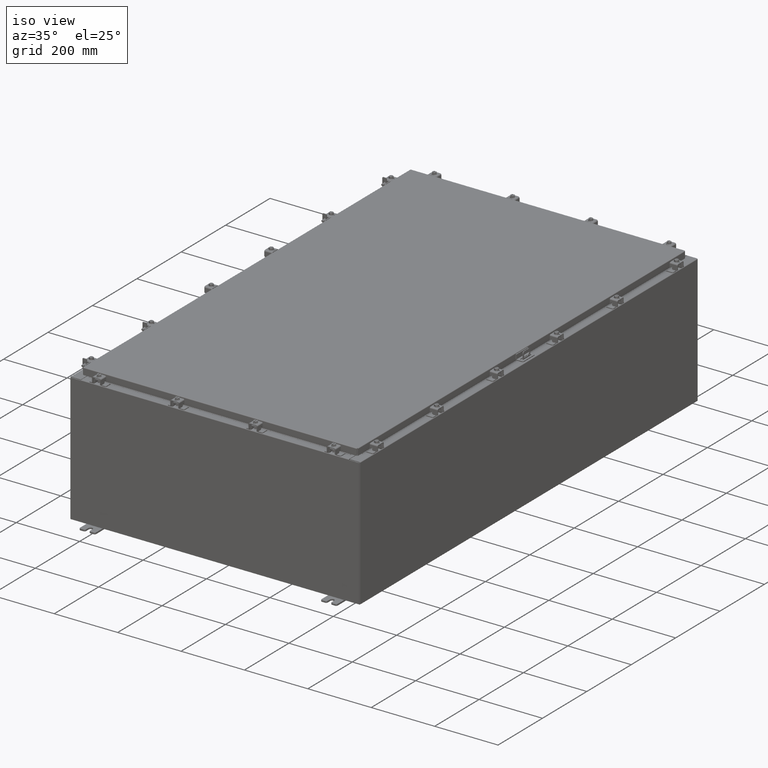
[diagram: clean part render]
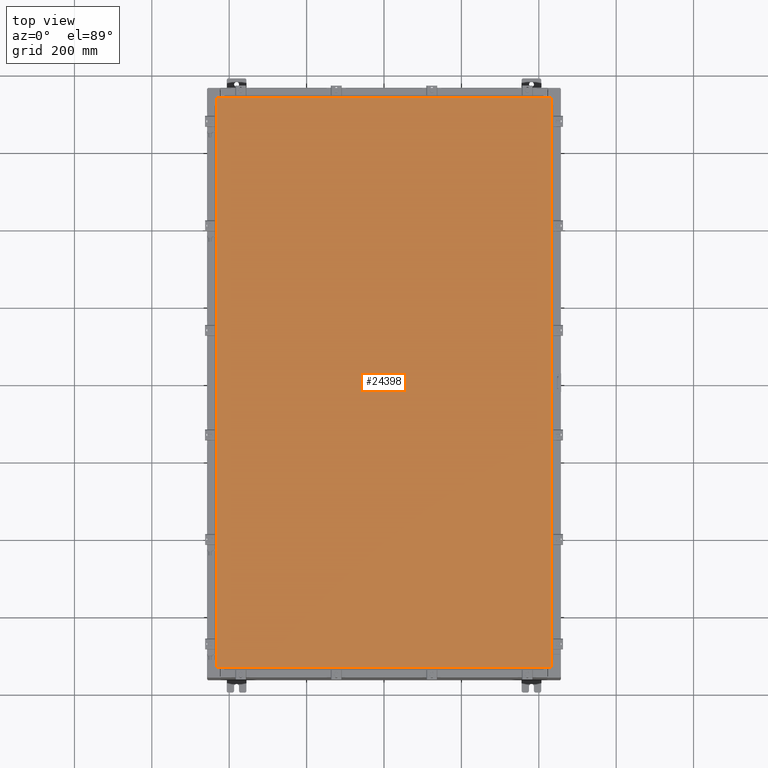
[diagram: tour spotlight — one face highlighted and labeled with its STEP entity id]
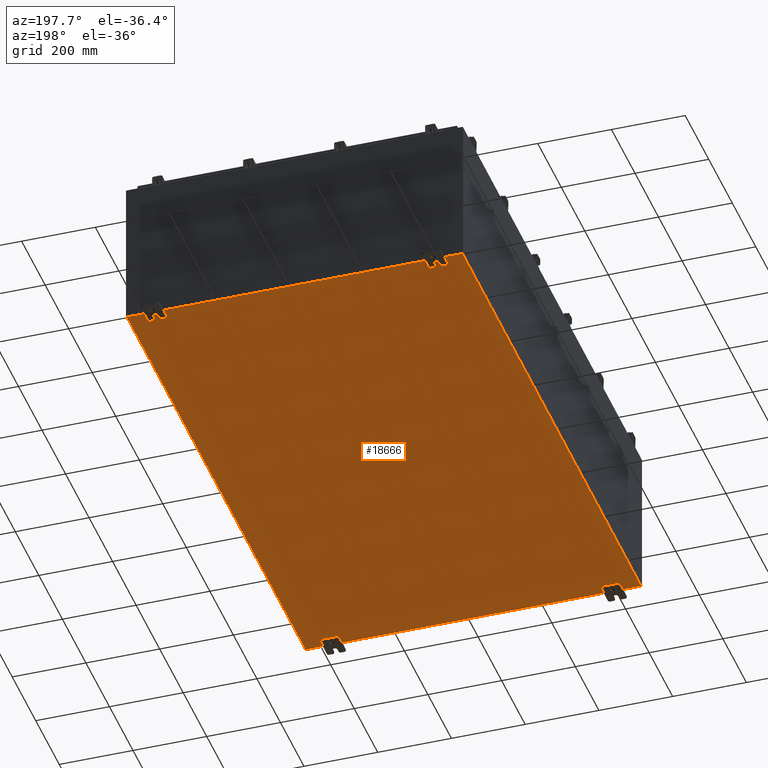
[diagram: tour spotlight — one face highlighted and labeled with its STEP entity id]
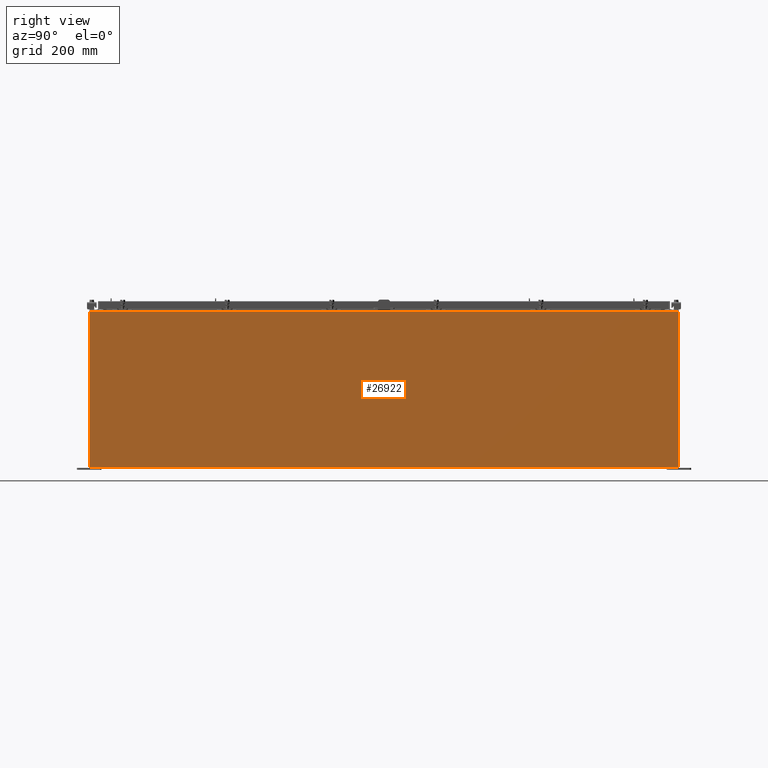
[diagram: tour spotlight — one face highlighted and labeled with its STEP entity id]
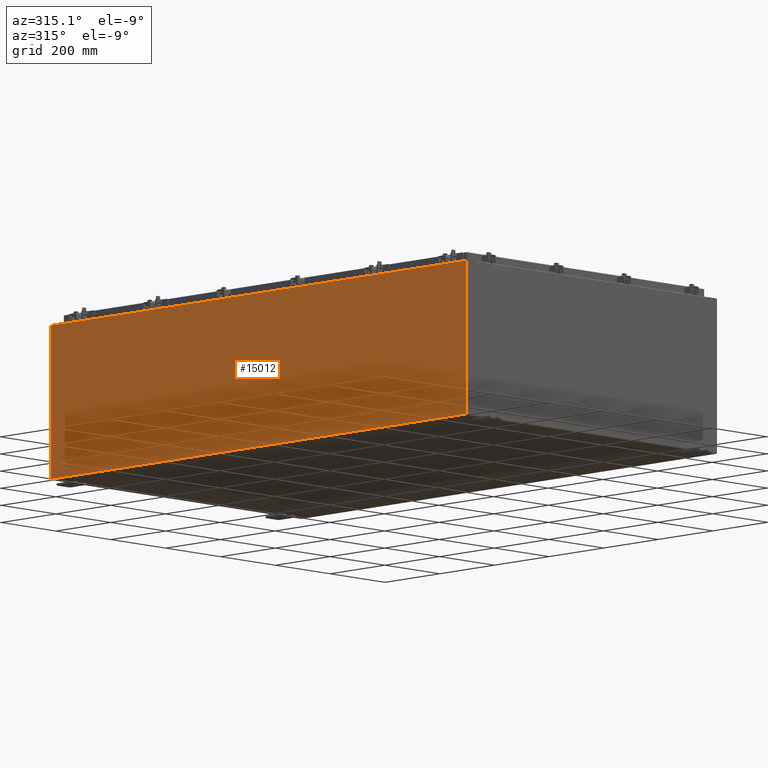
[diagram: tour spotlight — one face highlighted and labeled with its STEP entity id]
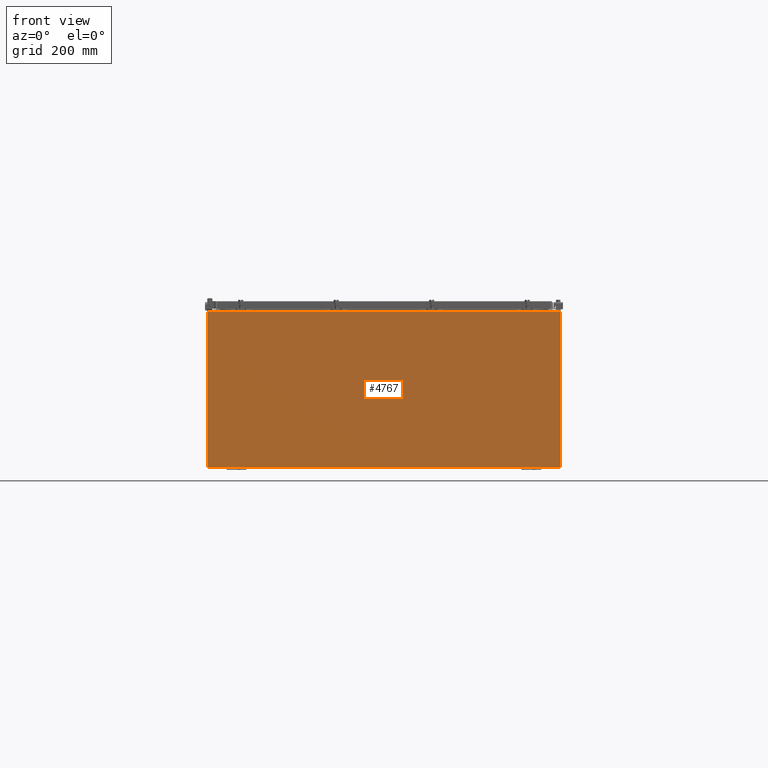
[diagram: tour spotlight — one face highlighted and labeled with its STEP entity id]
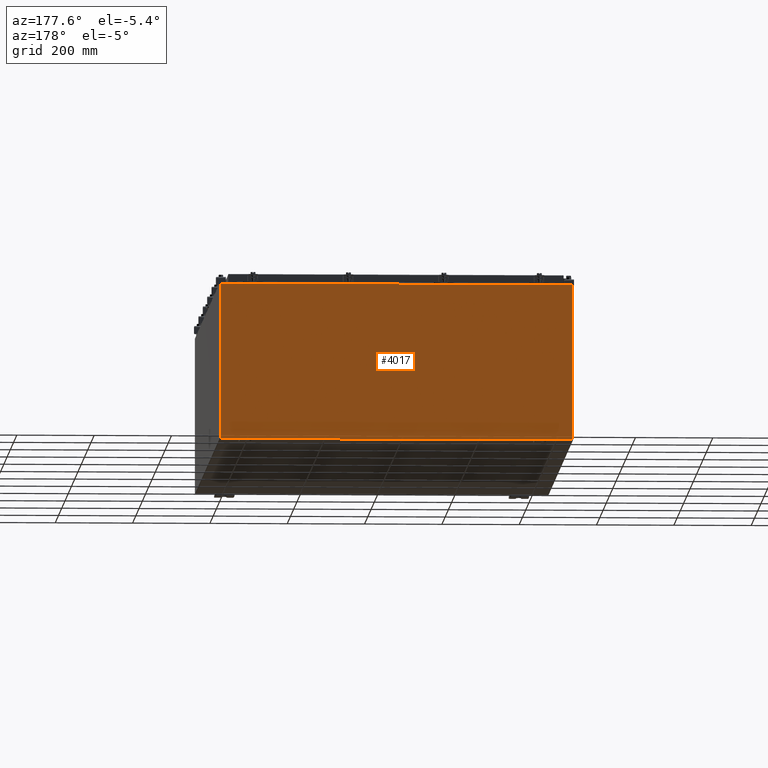
[diagram: tour spotlight — one face highlighted and labeled with its STEP entity id]
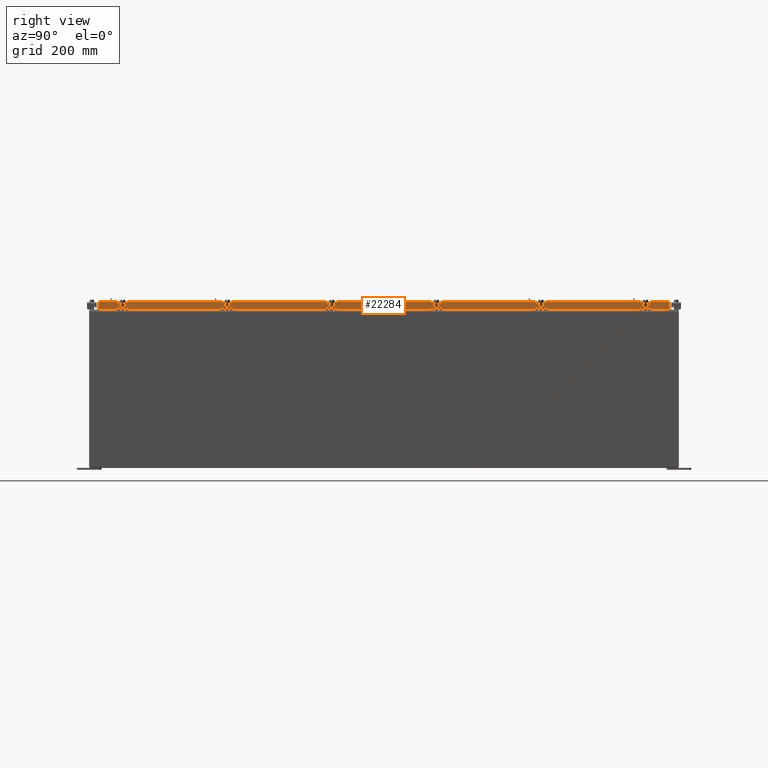
[diagram: tour spotlight — one face highlighted and labeled with its STEP entity id]
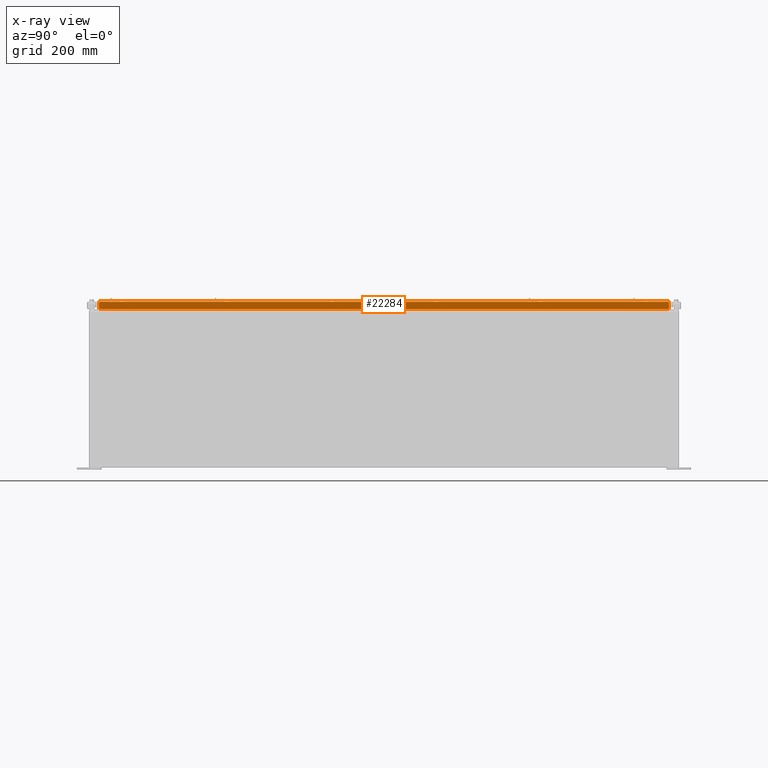
[diagram: x-ray of the same camera — body ghosted, this tour face saturated]
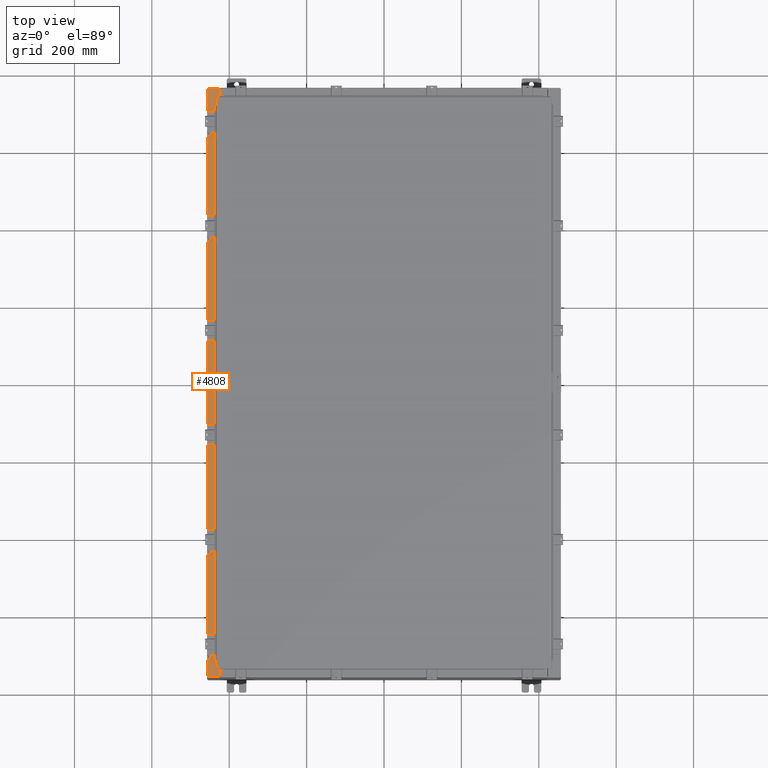
[diagram: tour spotlight — one face highlighted and labeled with its STEP entity id]
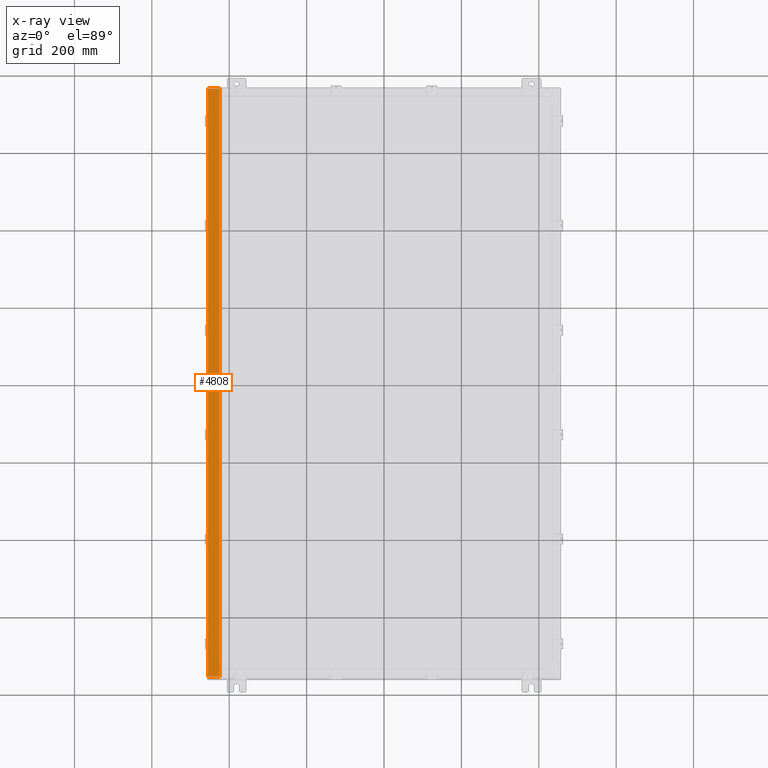
[diagram: x-ray of the same camera — body ghosted, this tour face saturated]
A machine part: a face-by-face anatomy tour. The part has 3424 B-rep faces; the first image is the clean iso view, then the 8 largest visible faces are spotlighted one at a time (largest first), each with its STEP entity span.

Face 1 — top view, entity #24398. In plain terms, the highlighted planar face has unit normal (0, 0, -1).
Definition (entity closure, byte-faithful):
#285 = DIRECTION ( 'NONE',  ( 0.0000000000000000000, -1.000000000000000000, 0.0000000000000000000 ) ) ;
#476 = ORIENTED_EDGE ( 'NONE', *, *, #16790, .T. ) ;
#2296 = CARTESIAN_POINT ( 'NONE',  ( 16.99030000000000100, 29.00630000000000300, 1.946441695485787500E-015 ) ) ;
#2673 = EDGE_CURVE ( 'NONE', #3582, #8824, #25720, .T. ) ;
#3081 = VERTEX_POINT ( 'NONE', #13873 ) ;
#3582 = VERTEX_POINT ( 'NONE', #10084 ) ;
#4057 = AXIS2_PLACEMENT_3D ( 'NONE', #19864, #24164, #11387 ) ;
#4143 = VERTEX_POINT ( 'NONE', #4274 ) ;
#4274 = CARTESIAN_POINT ( 'NONE',  ( -16.99029999999999800, 29.00629999999999600, -2.048885995248197400E-016 ) ) ;
#4949 = PLANE ( 'NONE',  #4057 ) ;
#5004 = VECTOR ( 'NONE', #15043, 39.37007874015748100 ) ;
#6049 = ORIENTED_EDGE ( 'NONE', *, *, #23195, .T. ) ;
#6284 = DIRECTION ( 'NONE',  ( 1.000000000000000000, -0.0000000000000000000, -0.0000000000000000000 ) ) ;
#6355 = DIRECTION ( 'NONE',  ( 0.0000000000000000000, 1.000000000000000000, 0.0000000000000000000 ) ) ;
#7999 = VECTOR ( 'NONE', #285, 39.37007874015748100 ) ;
#8824 = VERTEX_POINT ( 'NONE', #16260 ) ;
#10084 = CARTESIAN_POINT ( 'NONE',  ( 16.99030000000000500, -29.00630000000000000, -2.048885995248197400E-016 ) ) ;
#11387 = DIRECTION ( 'NONE',  ( -1.000000000000000000, 0.0000000000000000000, -0.0000000000000000000 ) ) ;
#13873 = CARTESIAN_POINT ( 'NONE',  ( -16.99029999999999400, -29.00630000000000700, 1.946441695485787500E-015 ) ) ;
#14957 = FACE_OUTER_BOUND ( 'NONE', #20002, .T. ) ;
#15043 = DIRECTION ( 'NONE',  ( -1.000000000000000000, -0.0000000000000000000, -0.0000000000000000000 ) ) ;
#15853 = EDGE_CURVE ( 'NONE', #3081, #3582, #20408, .T. ) ;
#16260 = CARTESIAN_POINT ( 'NONE',  ( 16.99030000000000100, 29.00630000000000300, 1.946441695485787500E-015 ) ) ;
#16790 = EDGE_CURVE ( 'NONE', #4143, #3081, #25030, .T. ) ;
#19864 = CARTESIAN_POINT ( 'NONE',  ( 0.0000000000000000000, 0.0000000000000000000, 0.0000000000000000000 ) ) ;
#20002 = EDGE_LOOP ( 'NONE', ( #23598, #24857, #6049, #476 ) ) ;
#20034 = VECTOR ( 'NONE', #6355, 39.37007874015748100 ) ;
#20408 = LINE ( 'NONE', #21228, #25414 ) ;
#21228 = CARTESIAN_POINT ( 'NONE',  ( -16.99029999999999400, -29.00630000000000700, 1.946441695485787500E-015 ) ) ;
#21374 = LINE ( 'NONE', #2296, #5004 ) ;
#23195 = EDGE_CURVE ( 'NONE', #8824, #4143, #21374, .T. ) ;
#23598 = ORIENTED_EDGE ( 'NONE', *, *, #15853, .T. ) ;
#24164 = DIRECTION ( 'NONE',  ( 0.0000000000000000000, 0.0000000000000000000, -1.000000000000000000 ) ) ;
#24398 = ADVANCED_FACE ( 'NONE', ( #14957 ), #4949, .F. ) ;
#24857 = ORIENTED_EDGE ( 'NONE', *, *, #2673, .T. ) ;
#25030 = LINE ( 'NONE', #25814, #7999 ) ;
#25414 = VECTOR ( 'NONE', #6284, 39.37007874015748100 ) ;
#25585 = CARTESIAN_POINT ( 'NONE',  ( 16.99030000000000500, -29.00630000000000000, -2.048885995248197400E-016 ) ) ;
#25720 = LINE ( 'NONE', #25585, #20034 ) ;
#25814 = CARTESIAN_POINT ( 'NONE',  ( -16.99029999999999800, 29.00629999999998900, -2.048885995248197400E-016 ) ) ;

Face 2 — auxiliary view, entity #18666. In plain terms, the highlighted planar face has unit normal (0, 0, -1).
Definition (entity closure, byte-faithful):
#71 = PLANE ( 'NONE',  #1835 ) ;
#624 = VERTEX_POINT ( 'NONE', #17919 ) ;
#1250 = DIRECTION ( 'NONE',  ( -0.0000000000000000000, 1.000000000000000000, -0.0000000000000000000 ) ) ;
#1383 = CARTESIAN_POINT ( 'NONE',  ( -17.91230000000000200, 29.92529999999998600, -0.07470000000000000300 ) ) ;
#1835 = AXIS2_PLACEMENT_3D ( 'NONE', #25599, #19161, #2201 ) ;
#2201 = DIRECTION ( 'NONE',  ( -1.000000000000000000, 0.0000000000000000000, -0.0000000000000000000 ) ) ;
#5049 = LINE ( 'NONE', #24627, #9377 ) ;
#5662 = ORIENTED_EDGE ( 'NONE', *, *, #6009, .F. ) ;
#5933 = EDGE_LOOP ( 'NONE', ( #23881, #12210, #5662, #18965 ) ) ;
#6009 = EDGE_CURVE ( 'NONE', #16447, #14660, #11125, .T. ) ;
#6647 = LINE ( 'NONE', #21953, #17358 ) ;
#6887 = EDGE_CURVE ( 'NONE', #624, #14660, #5049, .T. ) ;
#8800 = DIRECTION ( 'NONE',  ( -1.000000000000000000, -0.0000000000000000000, -0.0000000000000000000 ) ) ;
#9172 = DIRECTION ( 'NONE',  ( -0.0000000000000000000, -1.000000000000000000, -0.0000000000000000000 ) ) ;
#9377 = VECTOR ( 'NONE', #1250, 39.37007874015748100 ) ;
#9401 = CARTESIAN_POINT ( 'NONE',  ( 17.91229999999999800, -29.92530000000001100, -0.07470000000000000300 ) ) ;
#9698 = CARTESIAN_POINT ( 'NONE',  ( -18.00000000000000400, -29.92530000000001100, -0.07470000000000000300 ) ) ;
#10316 = VECTOR ( 'NONE', #24631, 39.37007874015748100 ) ;
#11125 = LINE ( 'NONE', #21585, #27462 ) ;
#12002 = VERTEX_POINT ( 'NONE', #9401 ) ;
#12210 = ORIENTED_EDGE ( 'NONE', *, *, #6887, .T. ) ;
#14286 = FACE_OUTER_BOUND ( 'NONE', #5933, .T. ) ;
#14660 = VERTEX_POINT ( 'NONE', #1383 ) ;
#16137 = CARTESIAN_POINT ( 'NONE',  ( 17.91229999999999800, 29.92529999999999300, -0.07469999999999994700 ) ) ;
#16447 = VERTEX_POINT ( 'NONE', #16137 ) ;
#17358 = VECTOR ( 'NONE', #9172, 39.37007874015748100 ) ;
#17919 = CARTESIAN_POINT ( 'NONE',  ( -17.91230000000000200, -29.92530000000001100, -0.07469999999999994700 ) ) ;
#18666 = ADVANCED_FACE ( 'NONE', ( #14286 ), #71, .T. ) ;
#18965 = ORIENTED_EDGE ( 'NONE', *, *, #23369, .T. ) ;
#19161 = DIRECTION ( 'NONE',  ( 0.0000000000000000000, 0.0000000000000000000, -1.000000000000000000 ) ) ;
#21585 = CARTESIAN_POINT ( 'NONE',  ( -18.00000000000000400, 29.92529999999998900, -0.07470000000000000300 ) ) ;
#21640 = LINE ( 'NONE', #9698, #10316 ) ;
#21953 = CARTESIAN_POINT ( 'NONE',  ( 17.91229999999999800, 29.92529999999999300, -0.07469999999999994700 ) ) ;
#23369 = EDGE_CURVE ( 'NONE', #16447, #12002, #6647, .T. ) ;
#23881 = ORIENTED_EDGE ( 'NONE', *, *, #24598, .F. ) ;
#24598 = EDGE_CURVE ( 'NONE', #624, #12002, #21640, .T. ) ;
#24627 = CARTESIAN_POINT ( 'NONE',  ( -17.91230000000000200, -29.92530000000002100, -0.07469999999999994700 ) ) ;
#24631 = DIRECTION ( 'NONE',  ( 1.000000000000000000, 0.0000000000000000000, 0.0000000000000000000 ) ) ;
#25599 = CARTESIAN_POINT ( 'NONE',  ( 0.0000000000000000000, 0.0000000000000000000, -0.07470000000000000300 ) ) ;
#27462 = VECTOR ( 'NONE', #8800, 39.37007874015748100 ) ;

Face 3 — right view, entity #26922. In plain terms, the highlighted planar face has unit normal (-1, 0, 0).
Definition (entity closure, byte-faithful):
#340 = LINE ( 'NONE', #15529, #16701 ) ;
#2521 = PLANE ( 'NONE',  #24140 ) ;
#3540 = EDGE_CURVE ( 'NONE', #8741, #20076, #16877, .T. ) ;
#3715 = ORIENTED_EDGE ( 'NONE', *, *, #14588, .T. ) ;
#4912 = DIRECTION ( 'NONE',  ( -3.430827668758847500E-015, 0.0000000000000000000, -1.000000000000000000 ) ) ;
#6778 = DIRECTION ( 'NONE',  ( -1.000000000000000000, 0.0000000000000000000, 3.430827668758846700E-015 ) ) ;
#6800 = VERTEX_POINT ( 'NONE', #7332 ) ;
#7332 = CARTESIAN_POINT ( 'NONE',  ( 18.00000000000005300, -29.92530000000001100, 15.83760000000000200 ) ) ;
#7386 = CARTESIAN_POINT ( 'NONE',  ( 17.99999999999999600, -29.92530000000001100, 0.01299999999999984800 ) ) ;
#7643 = DIRECTION ( 'NONE',  ( -0.0000000000000000000, -1.000000000000000000, -0.0000000000000000000 ) ) ;
#8741 = VERTEX_POINT ( 'NONE', #13905 ) ;
#9647 = VECTOR ( 'NONE', #11707, 39.37007874015748100 ) ;
#9893 = VECTOR ( 'NONE', #21135, 39.37007874015748100 ) ;
#9900 = FACE_OUTER_BOUND ( 'NONE', #15164, .T. ) ;
#11707 = DIRECTION ( 'NONE',  ( -0.0000000000000000000, -1.000000000000000000, -0.0000000000000000000 ) ) ;
#11871 = VECTOR ( 'NONE', #7643, 39.37007874015748100 ) ;
#13905 = CARTESIAN_POINT ( 'NONE',  ( 17.99999999999999600, 29.92529999999999300, 0.01299999999999984700 ) ) ;
#14588 = EDGE_CURVE ( 'NONE', #17072, #6800, #19651, .T. ) ;
#15164 = EDGE_LOOP ( 'NONE', ( #3715, #21966, #24670, #24207 ) ) ;
#15529 = CARTESIAN_POINT ( 'NONE',  ( 17.99999999999999600, -29.92530000000001100, -6.201571169367082000E-014 ) ) ;
#16701 = VECTOR ( 'NONE', #4912, 39.37007874015748100 ) ;
#16877 = LINE ( 'NONE', #22590, #11871 ) ;
#16933 = EDGE_CURVE ( 'NONE', #6800, #20076, #340, .T. ) ;
#17072 = VERTEX_POINT ( 'NONE', #24584 ) ;
#19561 = CARTESIAN_POINT ( 'NONE',  ( 17.99999999999999600, 0.0000000000000000000, -6.201571169367082000E-014 ) ) ;
#19651 = LINE ( 'NONE', #26603, #9647 ) ;
#20076 = VERTEX_POINT ( 'NONE', #7386 ) ;
#21135 = DIRECTION ( 'NONE',  ( 3.430827668758847500E-015, 0.0000000000000000000, 1.000000000000000000 ) ) ;
#21711 = DIRECTION ( 'NONE',  ( 3.430827668758846700E-015, 0.0000000000000000000, 1.000000000000000000 ) ) ;
#21966 = ORIENTED_EDGE ( 'NONE', *, *, #16933, .T. ) ;
#22590 = CARTESIAN_POINT ( 'NONE',  ( 17.99999999999999600, -29.92530000000001100, 0.01299999999999984700 ) ) ;
#24140 = AXIS2_PLACEMENT_3D ( 'NONE', #19561, #6778, #21711 ) ;
#24207 = ORIENTED_EDGE ( 'NONE', *, *, #26023, .T. ) ;
#24584 = CARTESIAN_POINT ( 'NONE',  ( 18.00000000000005000, 29.92529999999999300, 15.83760000000000200 ) ) ;
#24670 = ORIENTED_EDGE ( 'NONE', *, *, #3540, .F. ) ;
#25322 = CARTESIAN_POINT ( 'NONE',  ( 17.99999999999999600, 29.92529999999998900, -6.201571169367082000E-014 ) ) ;
#26023 = EDGE_CURVE ( 'NONE', #8741, #17072, #26226, .T. ) ;
#26226 = LINE ( 'NONE', #25322, #9893 ) ;
#26603 = CARTESIAN_POINT ( 'NONE',  ( 18.00000000000005000, 29.92529999999999300, 15.83760000000000200 ) ) ;
#26922 = ADVANCED_FACE ( 'NONE', ( #9900 ), #2521, .F. ) ;

Face 4 — auxiliary view, entity #15012. In plain terms, the highlighted planar face has unit normal (1, 0, 0).
Definition (entity closure, byte-faithful):
#359 = LINE ( 'NONE', #3070, #22370 ) ;
#1223 = EDGE_CURVE ( 'NONE', #14796, #25410, #4771, .T. ) ;
#1402 = DIRECTION ( 'NONE',  ( 1.000000000000000000, 0.0000000000000000000, 3.430827668758847900E-015 ) ) ;
#1780 = FACE_OUTER_BOUND ( 'NONE', #23819, .T. ) ;
#2081 = CARTESIAN_POINT ( 'NONE',  ( -18.00000000000006000, -29.92530000000001100, 15.83759999999999700 ) ) ;
#2627 = EDGE_CURVE ( 'NONE', #4648, #25410, #16399, .T. ) ;
#3017 = EDGE_CURVE ( 'NONE', #20308, #4648, #19044, .T. ) ;
#3070 = CARTESIAN_POINT ( 'NONE',  ( -18.00000000000000400, -29.92530000000001100, -6.201571169367084500E-014 ) ) ;
#4648 = VERTEX_POINT ( 'NONE', #12184 ) ;
#4771 = LINE ( 'NONE', #17730, #24463 ) ;
#5027 = VECTOR ( 'NONE', #14755, 39.37007874015748100 ) ;
#7686 = VECTOR ( 'NONE', #11659, 39.37007874015748100 ) ;
#8356 = ORIENTED_EDGE ( 'NONE', *, *, #1223, .F. ) ;
#8737 = ORIENTED_EDGE ( 'NONE', *, *, #2627, .T. ) ;
#11659 = DIRECTION ( 'NONE',  ( 0.0000000000000000000, 1.000000000000000000, 0.0000000000000000000 ) ) ;
#12015 = PLANE ( 'NONE',  #21920 ) ;
#12184 = CARTESIAN_POINT ( 'NONE',  ( -18.00000000000005700, 29.92529999999998900, 15.83759999999999700 ) ) ;
#12359 = CARTESIAN_POINT ( 'NONE',  ( -18.00000000000000400, -29.92530000000001100, 0.01299999999999984700 ) ) ;
#13783 = CARTESIAN_POINT ( 'NONE',  ( -18.00000000000006000, -29.92530000000001800, 15.83759999999999700 ) ) ;
#13890 = EDGE_CURVE ( 'NONE', #14796, #20308, #359, .T. ) ;
#14132 = CARTESIAN_POINT ( 'NONE',  ( -18.00000000000000400, 0.0000000000000000000, -6.201571169367084500E-014 ) ) ;
#14755 = DIRECTION ( 'NONE',  ( 3.430827668758847900E-015, 0.0000000000000000000, -1.000000000000000000 ) ) ;
#14796 = VERTEX_POINT ( 'NONE', #12359 ) ;
#15012 = ADVANCED_FACE ( 'NONE', ( #1780 ), #12015, .F. ) ;
#16299 = DIRECTION ( 'NONE',  ( 3.430827668758847900E-015, 0.0000000000000000000, -1.000000000000000000 ) ) ;
#16399 = LINE ( 'NONE', #27544, #5027 ) ;
#17730 = CARTESIAN_POINT ( 'NONE',  ( -18.00000000000000400, 29.92529999999998900, 0.01299999999999984700 ) ) ;
#17974 = DIRECTION ( 'NONE',  ( -3.430827668758847900E-015, 0.0000000000000000000, 1.000000000000000000 ) ) ;
#19044 = LINE ( 'NONE', #13783, #7686 ) ;
#20308 = VERTEX_POINT ( 'NONE', #2081 ) ;
#21825 = ORIENTED_EDGE ( 'NONE', *, *, #3017, .T. ) ;
#21920 = AXIS2_PLACEMENT_3D ( 'NONE', #14132, #1402, #16299 ) ;
#22370 = VECTOR ( 'NONE', #17974, 39.37007874015748100 ) ;
#23606 = ORIENTED_EDGE ( 'NONE', *, *, #13890, .T. ) ;
#23819 = EDGE_LOOP ( 'NONE', ( #21825, #8737, #8356, #23606 ) ) ;
#24463 = VECTOR ( 'NONE', #27010, 39.37007874015748100 ) ;
#25163 = CARTESIAN_POINT ( 'NONE',  ( -18.00000000000000400, 29.92529999999998600, 0.01299999999999984800 ) ) ;
#25410 = VERTEX_POINT ( 'NONE', #25163 ) ;
#27010 = DIRECTION ( 'NONE',  ( -0.0000000000000000000, 1.000000000000000000, -0.0000000000000000000 ) ) ;
#27544 = CARTESIAN_POINT ( 'NONE',  ( -18.00000000000000400, 29.92529999999998900, -6.201571169367084500E-014 ) ) ;

Face 5 — front view, entity #4767. In plain terms, the highlighted planar face has unit normal (-0, 1, -0).
Definition (entity closure, byte-faithful):
#81 = EDGE_LOOP ( 'NONE', ( #7254, #21379, #12556, #7413, #25963, #25375, #22603, #5397, #554, #667, #14147, #347 ) ) ;
#195 = VERTEX_POINT ( 'NONE', #14907 ) ;
#248 = DIRECTION ( 'NONE',  ( 1.000000000000000000, 0.0000000000000000000, 0.0000000000000000000 ) ) ;
#347 = ORIENTED_EDGE ( 'NONE', *, *, #3921, .T. ) ;
#349 = EDGE_CURVE ( 'NONE', #22036, #13756, #10171, .T. ) ;
#467 = LINE ( 'NONE', #13590, #6132 ) ;
#554 = ORIENTED_EDGE ( 'NONE', *, *, #6011, .T. ) ;
#667 = ORIENTED_EDGE ( 'NONE', *, *, #9268, .T. ) ;
#957 = CARTESIAN_POINT ( 'NONE',  ( 16.63720000000000400, 0.0000000000000000000, 0.0000000000000000000 ) ) ;
#1605 = VECTOR ( 'NONE', #23731, 39.37007874015748100 ) ;
#1795 = CARTESIAN_POINT ( 'NONE',  ( -16.63720000000000400, -0.0000000000000000000, 0.0000000000000000000 ) ) ;
#2686 = VERTEX_POINT ( 'NONE', #12886 ) ;
#3172 = VECTOR ( 'NONE', #9490, 39.37007874015748100 ) ;
#3921 = EDGE_CURVE ( 'NONE', #11935, #27558, #25847, .T. ) ;
#4130 = LINE ( 'NONE', #1795, #14777 ) ;
#4393 = VECTOR ( 'NONE', #15887, 39.37007874015748100 ) ;
#4767 = ADVANCED_FACE ( 'NONE', ( #24515 ), #27365, .F. ) ;
#4975 = AXIS2_PLACEMENT_3D ( 'NONE', #9913, #24847, #12072 ) ;
#5044 = LINE ( 'NONE', #13726, #4393 ) ;
#5397 = ORIENTED_EDGE ( 'NONE', *, *, #25558, .T. ) ;
#5889 = EDGE_CURVE ( 'NONE', #13756, #26725, #24459, .T. ) ;
#6004 = DIRECTION ( 'NONE',  ( 0.0000000000000000000, -1.000000000000000000, 0.0000000000000000000 ) ) ;
#6011 = EDGE_CURVE ( 'NONE', #21753, #27354, #22467, .T. ) ;
#6047 = DIRECTION ( 'NONE',  ( 0.0000000000000000000, 0.0000000000000000000, -1.000000000000000000 ) ) ;
#6132 = VECTOR ( 'NONE', #26371, 39.37007874015748100 ) ;
#6590 = VECTOR ( 'NONE', #248, 39.37007874015748100 ) ;
#6623 = CARTESIAN_POINT ( 'NONE',  ( -16.63720000000000400, -2.356218894535426900E-015, 7.912300000000008100 ) ) ;
#7206 = LINE ( 'NONE', #10970, #1605 ) ;
#7254 = ORIENTED_EDGE ( 'NONE', *, *, #25642, .F. ) ;
#7355 = CARTESIAN_POINT ( 'NONE',  ( -16.63720000000000400, -2.356218894535426900E-015, 7.912300000000008100 ) ) ;
#7413 = ORIENTED_EDGE ( 'NONE', *, *, #18741, .T. ) ;
#7610 = CARTESIAN_POINT ( 'NONE',  ( 16.67454999999931800, -0.0000000000000000000, -1.447541957108381700E-012 ) ) ;
#8163 = DIRECTION ( 'NONE',  ( 0.0000000000000000000, 0.0000000000000000000, -1.000000000000000000 ) ) ;
#8578 = LINE ( 'NONE', #12746, #14911 ) ;
#8843 = EDGE_CURVE ( 'NONE', #2686, #14901, #21184, .T. ) ;
#9268 = EDGE_CURVE ( 'NONE', #27354, #195, #467, .T. ) ;
#9490 = DIRECTION ( 'NONE',  ( 1.000000000000000000, 0.0000000000000000000, -6.096072018129154100E-017 ) ) ;
#9735 = VERTEX_POINT ( 'NONE', #7355 ) ;
#9913 = CARTESIAN_POINT ( 'NONE',  ( -16.65587500000000200, 0.0000000000000000000, 7.874950000000001900 ) ) ;
#10171 = CIRCLE ( 'NONE', #17537, 0.01867499999999949400 ) ;
#10318 = CARTESIAN_POINT ( 'NONE',  ( 0.0000000000000000000, 0.0000000000000000000, 0.0000000000000000000 ) ) ;
#10970 = CARTESIAN_POINT ( 'NONE',  ( -16.67455000000000000, -0.0000000000000000000, 0.0000000000000000000 ) ) ;
#11495 = CARTESIAN_POINT ( 'NONE',  ( -16.67455000000000000, 0.0000000000000000000, 7.925300000000001800 ) ) ;
#11642 = CARTESIAN_POINT ( 'NONE',  ( -17.92530000000000000, 0.0000000000000000000, 7.925300000000001800 ) ) ;
#11935 = VERTEX_POINT ( 'NONE', #17175 ) ;
#12072 = DIRECTION ( 'NONE',  ( 0.0000000000000000000, 0.0000000000000000000, -1.000000000000000000 ) ) ;
#12556 = ORIENTED_EDGE ( 'NONE', *, *, #22487, .F. ) ;
#12737 = DIRECTION ( 'NONE',  ( 0.0000000000000000000, 0.0000000000000000000, 1.000000000000000000 ) ) ;
#12746 = CARTESIAN_POINT ( 'NONE',  ( -17.92530000000000000, 0.0000000000000000000, 7.925300000000001800 ) ) ;
#12886 = CARTESIAN_POINT ( 'NONE',  ( -16.63720000000000400, -0.0000000000000000000, 7.874950000000001900 ) ) ;
#13590 = CARTESIAN_POINT ( 'NONE',  ( -17.92530000000000000, 0.0000000000000000000, -7.925299999999997300 ) ) ;
#13631 = VERTEX_POINT ( 'NONE', #19293 ) ;
#13726 = CARTESIAN_POINT ( 'NONE',  ( -17.92530000000000000, 0.0000000000000000000, 7.925300000000001800 ) ) ;
#13756 = VERTEX_POINT ( 'NONE', #19747 ) ;
#13757 = VECTOR ( 'NONE', #12737, 39.37007874015748100 ) ;
#14147 = ORIENTED_EDGE ( 'NONE', *, *, #15510, .T. ) ;
#14592 = DIRECTION ( 'NONE',  ( 0.0000000000000000000, -0.0000000000000000000, -1.000000000000000000 ) ) ;
#14777 = VECTOR ( 'NONE', #6047, 39.37007874015748100 ) ;
#14901 = VERTEX_POINT ( 'NONE', #24397 ) ;
#14907 = CARTESIAN_POINT ( 'NONE',  ( -17.92530000000000000, 0.0000000000000000000, -7.925299999999997300 ) ) ;
#14911 = VECTOR ( 'NONE', #21255, 39.37007874015748100 ) ;
#14978 = EDGE_CURVE ( 'NONE', #13631, #22036, #26413, .T. ) ;
#15208 = CARTESIAN_POINT ( 'NONE',  ( 17.92530000000000000, 0.0000000000000000000, -7.925299999999997300 ) ) ;
#15510 = EDGE_CURVE ( 'NONE', #195, #11935, #5044, .T. ) ;
#15887 = DIRECTION ( 'NONE',  ( -0.0000000000000000000, -0.0000000000000000000, 1.000000000000000000 ) ) ;
#16112 = DIRECTION ( 'NONE',  ( -8.681145560800387200E-014, 0.0000000000000000000, -1.000000000000000000 ) ) ;
#16119 = VECTOR ( 'NONE', #25872, 39.37007874015748100 ) ;
#16552 = CARTESIAN_POINT ( 'NONE',  ( 17.92530000000000000, 0.0000000000000000000, 7.925300000000000000 ) ) ;
#16815 = CARTESIAN_POINT ( 'NONE',  ( 16.63720000000000400, 0.0000000000000000000, 7.912300000000001900 ) ) ;
#17175 = CARTESIAN_POINT ( 'NONE',  ( -17.92530000000000000, 0.0000000000000000000, 7.925300000000001800 ) ) ;
#17537 = AXIS2_PLACEMENT_3D ( 'NONE', #23080, #27008, #8163 ) ;
#18741 = EDGE_CURVE ( 'NONE', #9735, #26725, #24293, .T. ) ;
#19293 = CARTESIAN_POINT ( 'NONE',  ( 16.67455000000000700, 0.0000000000000000000, 7.925300000000000000 ) ) ;
#19747 = CARTESIAN_POINT ( 'NONE',  ( 16.63720000000000400, 0.0000000000000000000, 7.874950000000001900 ) ) ;
#20787 = VECTOR ( 'NONE', #16112, 39.37007874015748100 ) ;
#21184 = CIRCLE ( 'NONE', #4975, 0.01867499999999949400 ) ;
#21255 = DIRECTION ( 'NONE',  ( 1.000000000000000000, 0.0000000000000000000, -6.096072018129154100E-017 ) ) ;
#21379 = ORIENTED_EDGE ( 'NONE', *, *, #8843, .F. ) ;
#21753 = VERTEX_POINT ( 'NONE', #16552 ) ;
#22036 = VERTEX_POINT ( 'NONE', #23973 ) ;
#22467 = LINE ( 'NONE', #23723, #16119 ) ;
#22487 = EDGE_CURVE ( 'NONE', #9735, #2686, #4130, .T. ) ;
#22603 = ORIENTED_EDGE ( 'NONE', *, *, #14978, .F. ) ;
#23080 = CARTESIAN_POINT ( 'NONE',  ( 16.65587500000000200, 0.0000000000000000000, 7.874950000000001900 ) ) ;
#23723 = CARTESIAN_POINT ( 'NONE',  ( 17.92530000000000000, 0.0000000000000000000, 7.925300000000000000 ) ) ;
#23731 = DIRECTION ( 'NONE',  ( 0.0000000000000000000, 0.0000000000000000000, 1.000000000000000000 ) ) ;
#23973 = CARTESIAN_POINT ( 'NONE',  ( 16.67455000000000000, 0.0000000000000000000, 7.874950000000001900 ) ) ;
#24293 = LINE ( 'NONE', #6623, #6590 ) ;
#24397 = CARTESIAN_POINT ( 'NONE',  ( -16.67455000000000000, 0.0000000000000000000, 7.874950000000001900 ) ) ;
#24459 = LINE ( 'NONE', #957, #13757 ) ;
#24515 = FACE_OUTER_BOUND ( 'NONE', #81, .T. ) ;
#24847 = DIRECTION ( 'NONE',  ( -0.0000000000000000000, 1.000000000000000000, -0.0000000000000000000 ) ) ;
#25306 = AXIS2_PLACEMENT_3D ( 'NONE', #10318, #6004, #14592 ) ;
#25375 = ORIENTED_EDGE ( 'NONE', *, *, #349, .F. ) ;
#25558 = EDGE_CURVE ( 'NONE', #13631, #21753, #8578, .T. ) ;
#25642 = EDGE_CURVE ( 'NONE', #14901, #27558, #7206, .T. ) ;
#25847 = LINE ( 'NONE', #11642, #3172 ) ;
#25872 = DIRECTION ( 'NONE',  ( 0.0000000000000000000, 0.0000000000000000000, -1.000000000000000000 ) ) ;
#25963 = ORIENTED_EDGE ( 'NONE', *, *, #5889, .F. ) ;
#26371 = DIRECTION ( 'NONE',  ( -1.000000000000000000, -0.0000000000000000000, -0.0000000000000000000 ) ) ;
#26413 = LINE ( 'NONE', #7610, #20787 ) ;
#26725 = VERTEX_POINT ( 'NONE', #16815 ) ;
#27008 = DIRECTION ( 'NONE',  ( -0.0000000000000000000, 1.000000000000000000, -0.0000000000000000000 ) ) ;
#27354 = VERTEX_POINT ( 'NONE', #15208 ) ;
#27365 = PLANE ( 'NONE',  #25306 ) ;
#27558 = VERTEX_POINT ( 'NONE', #11495 ) ;

Face 6 — auxiliary view, entity #4017. In plain terms, the highlighted planar face has unit normal (0, -1, 0).
Definition (entity closure, byte-faithful):
#159 = EDGE_CURVE ( 'NONE', #25508, #13451, #20523, .T. ) ;
#404 = LINE ( 'NONE', #7147, #11740 ) ;
#473 = CARTESIAN_POINT ( 'NONE',  ( -17.92530000000000000, 0.0000000000000000000, 7.925300000000001800 ) ) ;
#842 = DIRECTION ( 'NONE',  ( 0.0000000000000000000, 0.0000000000000000000, -1.000000000000000000 ) ) ;
#1032 = CARTESIAN_POINT ( 'NONE',  ( -16.65587500000000200, 0.0000000000000000000, 7.874950000000001900 ) ) ;
#1312 = DIRECTION ( 'NONE',  ( -0.0000000000000000000, -0.0000000000000000000, 1.000000000000000000 ) ) ;
#1349 = ORIENTED_EDGE ( 'NONE', *, *, #2277, .T. ) ;
#1816 = CARTESIAN_POINT ( 'NONE',  ( -16.67455000000000000, 0.0000000000000000000, 7.925300000000001800 ) ) ;
#2277 = EDGE_CURVE ( 'NONE', #6882, #11580, #404, .T. ) ;
#3184 = DIRECTION ( 'NONE',  ( 0.0000000000000000000, 0.0000000000000000000, -1.000000000000000000 ) ) ;
#3512 = VECTOR ( 'NONE', #17979, 39.37007874015748100 ) ;
#3674 = CARTESIAN_POINT ( 'NONE',  ( 16.67455000000000700, 0.0000000000000000000, 7.925300000000000000 ) ) ;
#4017 = ADVANCED_FACE ( 'NONE', ( #8168 ), #24892, .F. ) ;
#4123 = CARTESIAN_POINT ( 'NONE',  ( -16.67455000000000000, 0.0000000000000000000, 7.874950000000001900 ) ) ;
#5016 = ORIENTED_EDGE ( 'NONE', *, *, #12497, .F. ) ;
#5901 = EDGE_CURVE ( 'NONE', #11580, #12421, #18809, .T. ) ;
#6102 = CARTESIAN_POINT ( 'NONE',  ( 16.63720000000000400, 0.0000000000000000000, 7.912300000000001900 ) ) ;
#6513 = VECTOR ( 'NONE', #19957, 39.37007874015748100 ) ;
#6832 = AXIS2_PLACEMENT_3D ( 'NONE', #1032, #15929, #3184 ) ;
#6865 = EDGE_CURVE ( 'NONE', #25837, #27260, #15718, .T. ) ;
#6882 = VERTEX_POINT ( 'NONE', #11870 ) ;
#7041 = DIRECTION ( 'NONE',  ( 0.0000000000000000000, 0.0000000000000000000, 1.000000000000000000 ) ) ;
#7100 = LINE ( 'NONE', #27228, #11465 ) ;
#7147 = CARTESIAN_POINT ( 'NONE',  ( 17.92530000000000000, 0.0000000000000000000, 7.925300000000000000 ) ) ;
#7873 = LINE ( 'NONE', #17831, #6513 ) ;
#8168 = FACE_OUTER_BOUND ( 'NONE', #19898, .T. ) ;
#8205 = EDGE_CURVE ( 'NONE', #24833, #13451, #7100, .T. ) ;
#9241 = EDGE_CURVE ( 'NONE', #25837, #21552, #23185, .T. ) ;
#9445 = CARTESIAN_POINT ( 'NONE',  ( -16.63720000000000400, -2.356218894535426900E-015, 7.912300000000008100 ) ) ;
#9577 = VERTEX_POINT ( 'NONE', #22982 ) ;
#10422 = ORIENTED_EDGE ( 'NONE', *, *, #14990, .T. ) ;
#10748 = VECTOR ( 'NONE', #18202, 39.37007874015748100 ) ;
#10799 = ORIENTED_EDGE ( 'NONE', *, *, #25117, .F. ) ;
#11031 = ORIENTED_EDGE ( 'NONE', *, *, #8205, .F. ) ;
#11465 = VECTOR ( 'NONE', #22978, 39.37007874015748100 ) ;
#11580 = VERTEX_POINT ( 'NONE', #11886 ) ;
#11740 = VECTOR ( 'NONE', #15627, 39.37007874015748100 ) ;
#11772 = CARTESIAN_POINT ( 'NONE',  ( -16.63720000000000400, -2.356218894535426900E-015, 7.912300000000008100 ) ) ;
#11870 = CARTESIAN_POINT ( 'NONE',  ( 17.92530000000000000, 0.0000000000000000000, 7.925300000000000000 ) ) ;
#11886 = CARTESIAN_POINT ( 'NONE',  ( 17.92530000000000000, 0.0000000000000000000, -7.925299999999997300 ) ) ;
#11909 = ORIENTED_EDGE ( 'NONE', *, *, #9241, .F. ) ;
#12073 = AXIS2_PLACEMENT_3D ( 'NONE', #14144, #12122, #27012 ) ;
#12122 = DIRECTION ( 'NONE',  ( 0.0000000000000000000, -1.000000000000000000, 0.0000000000000000000 ) ) ;
#12290 = VECTOR ( 'NONE', #23861, 39.37007874015748100 ) ;
#12421 = VERTEX_POINT ( 'NONE', #17334 ) ;
#12497 = EDGE_CURVE ( 'NONE', #13966, #27260, #24103, .T. ) ;
#12498 = ORIENTED_EDGE ( 'NONE', *, *, #6865, .T. ) ;
#12938 = LINE ( 'NONE', #473, #12290 ) ;
#13357 = VERTEX_POINT ( 'NONE', #3674 ) ;
#13451 = VERTEX_POINT ( 'NONE', #1816 ) ;
#13563 = DIRECTION ( 'NONE',  ( -0.0000000000000000000, 1.000000000000000000, -0.0000000000000000000 ) ) ;
#13966 = VERTEX_POINT ( 'NONE', #22468 ) ;
#14144 = CARTESIAN_POINT ( 'NONE',  ( 0.0000000000000000000, 0.0000000000000000000, 0.0000000000000000000 ) ) ;
#14410 = AXIS2_PLACEMENT_3D ( 'NONE', #26343, #13563, #842 ) ;
#14425 = LINE ( 'NONE', #24690, #25107 ) ;
#14990 = EDGE_CURVE ( 'NONE', #12421, #25508, #14425, .T. ) ;
#15110 = CIRCLE ( 'NONE', #6832, 0.01867499999999949400 ) ;
#15622 = CARTESIAN_POINT ( 'NONE',  ( -17.92530000000000000, 0.0000000000000000000, 7.925300000000001800 ) ) ;
#15627 = DIRECTION ( 'NONE',  ( 0.0000000000000000000, 0.0000000000000000000, -1.000000000000000000 ) ) ;
#15645 = CARTESIAN_POINT ( 'NONE',  ( -16.63720000000000400, -0.0000000000000000000, 0.0000000000000000000 ) ) ;
#15718 = LINE ( 'NONE', #11772, #10748 ) ;
#15929 = DIRECTION ( 'NONE',  ( -0.0000000000000000000, 1.000000000000000000, -0.0000000000000000000 ) ) ;
#16641 = CIRCLE ( 'NONE', #14410, 0.01867499999999949400 ) ;
#17334 = CARTESIAN_POINT ( 'NONE',  ( -17.92530000000000000, 0.0000000000000000000, -7.925299999999997300 ) ) ;
#17467 = VECTOR ( 'NONE', #22113, 39.37007874015748100 ) ;
#17831 = CARTESIAN_POINT ( 'NONE',  ( 16.67454999999931800, -0.0000000000000000000, -1.447541957108381700E-012 ) ) ;
#17979 = DIRECTION ( 'NONE',  ( 1.000000000000000000, 0.0000000000000000000, -6.096072018129154100E-017 ) ) ;
#18202 = DIRECTION ( 'NONE',  ( 1.000000000000000000, 0.0000000000000000000, 0.0000000000000000000 ) ) ;
#18465 = VECTOR ( 'NONE', #7041, 39.37007874015748100 ) ;
#18697 = ORIENTED_EDGE ( 'NONE', *, *, #159, .T. ) ;
#18809 = LINE ( 'NONE', #19172, #23791 ) ;
#19172 = CARTESIAN_POINT ( 'NONE',  ( -17.92530000000000000, 0.0000000000000000000, -7.925299999999997300 ) ) ;
#19836 = CARTESIAN_POINT ( 'NONE',  ( 16.63720000000000400, 0.0000000000000000000, 0.0000000000000000000 ) ) ;
#19898 = EDGE_LOOP ( 'NONE', ( #11031, #23923, #11909, #12498, #5016, #10799, #23645, #26845, #1349, #21933, #10422, #18697 ) ) ;
#19957 = DIRECTION ( 'NONE',  ( -8.681145560800387200E-014, 0.0000000000000000000, -1.000000000000000000 ) ) ;
#20523 = LINE ( 'NONE', #15622, #3512 ) ;
#21323 = DIRECTION ( 'NONE',  ( -1.000000000000000000, -0.0000000000000000000, -0.0000000000000000000 ) ) ;
#21552 = VERTEX_POINT ( 'NONE', #22228 ) ;
#21933 = ORIENTED_EDGE ( 'NONE', *, *, #5901, .T. ) ;
#22113 = DIRECTION ( 'NONE',  ( 0.0000000000000000000, 0.0000000000000000000, -1.000000000000000000 ) ) ;
#22175 = EDGE_CURVE ( 'NONE', #21552, #24833, #15110, .T. ) ;
#22228 = CARTESIAN_POINT ( 'NONE',  ( -16.63720000000000400, -0.0000000000000000000, 7.874950000000001900 ) ) ;
#22468 = CARTESIAN_POINT ( 'NONE',  ( 16.63720000000000400, 0.0000000000000000000, 7.874950000000001900 ) ) ;
#22978 = DIRECTION ( 'NONE',  ( 0.0000000000000000000, 0.0000000000000000000, 1.000000000000000000 ) ) ;
#22982 = CARTESIAN_POINT ( 'NONE',  ( 16.67455000000000000, 0.0000000000000000000, 7.874950000000001900 ) ) ;
#23141 = CARTESIAN_POINT ( 'NONE',  ( -17.92530000000000000, 0.0000000000000000000, 7.925300000000001800 ) ) ;
#23185 = LINE ( 'NONE', #15645, #17467 ) ;
#23645 = ORIENTED_EDGE ( 'NONE', *, *, #27525, .F. ) ;
#23791 = VECTOR ( 'NONE', #21323, 39.37007874015748100 ) ;
#23861 = DIRECTION ( 'NONE',  ( 1.000000000000000000, 0.0000000000000000000, -6.096072018129154100E-017 ) ) ;
#23923 = ORIENTED_EDGE ( 'NONE', *, *, #22175, .F. ) ;
#24103 = LINE ( 'NONE', #19836, #18465 ) ;
#24690 = CARTESIAN_POINT ( 'NONE',  ( -17.92530000000000000, 0.0000000000000000000, 7.925300000000001800 ) ) ;
#24833 = VERTEX_POINT ( 'NONE', #4123 ) ;
#24892 = PLANE ( 'NONE',  #12073 ) ;
#25009 = EDGE_CURVE ( 'NONE', #13357, #6882, #12938, .T. ) ;
#25107 = VECTOR ( 'NONE', #1312, 39.37007874015748100 ) ;
#25117 = EDGE_CURVE ( 'NONE', #9577, #13966, #16641, .T. ) ;
#25508 = VERTEX_POINT ( 'NONE', #23141 ) ;
#25837 = VERTEX_POINT ( 'NONE', #9445 ) ;
#26343 = CARTESIAN_POINT ( 'NONE',  ( 16.65587500000000200, 0.0000000000000000000, 7.874950000000001900 ) ) ;
#26845 = ORIENTED_EDGE ( 'NONE', *, *, #25009, .T. ) ;
#27012 = DIRECTION ( 'NONE',  ( 0.0000000000000000000, -0.0000000000000000000, -1.000000000000000000 ) ) ;
#27228 = CARTESIAN_POINT ( 'NONE',  ( -16.67455000000000000, -0.0000000000000000000, 0.0000000000000000000 ) ) ;
#27260 = VERTEX_POINT ( 'NONE', #6102 ) ;
#27525 = EDGE_CURVE ( 'NONE', #13357, #9577, #7873, .T. ) ;

Face 7 — right view, entity #22284. An x-ray twin of the same camera follows (body ghosted, this face saturated) — the face is partly hidden behind the body. In plain terms, the highlighted planar face has unit normal (1, 0, 0).
Definition (entity closure, byte-faithful):
#1240 = PLANE ( 'NONE',  #15410 ) ;
#2031 = VERTEX_POINT ( 'NONE', #13857 ) ;
#2034 = CARTESIAN_POINT ( 'NONE',  ( 17.07800000000000700, -29.00515786437626500, -0.8499999999999996400 ) ) ;
#2236 = VECTOR ( 'NONE', #21904, 39.37007874015748100 ) ;
#2340 = LINE ( 'NONE', #15662, #3702 ) ;
#2498 = CARTESIAN_POINT ( 'NONE',  ( 17.07800000000000300, 29.00515786437626500, -0.08770000000000007000 ) ) ;
#2771 = ORIENTED_EDGE ( 'NONE', *, *, #5539, .F. ) ;
#2940 = DIRECTION ( 'NONE',  ( 0.0000000000000000000, -1.000000000000000000, 0.0000000000000000000 ) ) ;
#3359 = CARTESIAN_POINT ( 'NONE',  ( 17.07800000000000300, 0.0000000000000000000, 4.840166239667796000E-014 ) ) ;
#3453 = CARTESIAN_POINT ( 'NONE',  ( 17.07800000000000700, -29.09400000000000500, -0.8499999999999996400 ) ) ;
#3702 = VECTOR ( 'NONE', #2940, 39.37007874015748100 ) ;
#3725 = ORIENTED_EDGE ( 'NONE', *, *, #25187, .T. ) ;
#3961 = LINE ( 'NONE', #20107, #15926 ) ;
#4285 = VERTEX_POINT ( 'NONE', #2498 ) ;
#5019 = LINE ( 'NONE', #26029, #21388 ) ;
#5510 = DIRECTION ( 'NONE',  ( 1.000000000000000000, 0.0000000000000000000, 2.818880942772360100E-015 ) ) ;
#5539 = EDGE_CURVE ( 'NONE', #2031, #21196, #9115, .T. ) ;
#6288 = VERTEX_POINT ( 'NONE', #9629 ) ;
#8123 = FACE_OUTER_BOUND ( 'NONE', #20998, .T. ) ;
#9074 = EDGE_CURVE ( 'NONE', #6288, #14105, #16501, .T. ) ;
#9115 = LINE ( 'NONE', #3453, #25496 ) ;
#9629 = CARTESIAN_POINT ( 'NONE',  ( 17.07800000000000700, 29.00515786437627200, -0.8499999999999996400 ) ) ;
#11276 = VERTEX_POINT ( 'NONE', #23902 ) ;
#12708 = DIRECTION ( 'NONE',  ( 0.0000000000000000000, -1.000000000000000000, 0.0000000000000000000 ) ) ;
#13857 = CARTESIAN_POINT ( 'NONE',  ( 17.07799999999998500, -28.25515786437626500, -0.8500000000000016400 ) ) ;
#14105 = VERTEX_POINT ( 'NONE', #22856 ) ;
#15410 = AXIS2_PLACEMENT_3D ( 'NONE', #3359, #5510, #20432 ) ;
#15662 = CARTESIAN_POINT ( 'NONE',  ( 17.07799999999998500, 28.25515786437626500, -0.8500000000000016400 ) ) ;
#15789 = VECTOR ( 'NONE', #12708, 39.37007874015748100 ) ;
#15926 = VECTOR ( 'NONE', #24401, 39.37007874015748100 ) ;
#16058 = EDGE_CURVE ( 'NONE', #21196, #11276, #5019, .T. ) ;
#16209 = DIRECTION ( 'NONE',  ( 0.0000000000000000000, -1.000000000000000000, 0.0000000000000000000 ) ) ;
#16501 = LINE ( 'NONE', #19048, #15789 ) ;
#17264 = ORIENTED_EDGE ( 'NONE', *, *, #16058, .F. ) ;
#17588 = EDGE_CURVE ( 'NONE', #14105, #2031, #2340, .T. ) ;
#19048 = CARTESIAN_POINT ( 'NONE',  ( 17.07800000000000700, -29.09400000000000500, -0.8499999999999996400 ) ) ;
#19236 = LINE ( 'NONE', #19748, #2236 ) ;
#19683 = DIRECTION ( 'NONE',  ( -2.818880942772360100E-015, -6.982962677686265900E-015, 1.000000000000000000 ) ) ;
#19748 = CARTESIAN_POINT ( 'NONE',  ( 17.07800000000000300, 0.0000000000000000000, -0.08770000000000007000 ) ) ;
#20107 = CARTESIAN_POINT ( 'NONE',  ( 17.07800000000000300, 29.00515786437626500, 2.509435972240157400E-013 ) ) ;
#20110 = ORIENTED_EDGE ( 'NONE', *, *, #26970, .T. ) ;
#20432 = DIRECTION ( 'NONE',  ( 2.818880942772360100E-015, 0.0000000000000000000, -1.000000000000000000 ) ) ;
#20998 = EDGE_LOOP ( 'NONE', ( #17264, #2771, #26889, #27497, #3725, #20110 ) ) ;
#21196 = VERTEX_POINT ( 'NONE', #2034 ) ;
#21388 = VECTOR ( 'NONE', #19683, 39.37007874015748100 ) ;
#21904 = DIRECTION ( 'NONE',  ( 0.0000000000000000000, -1.000000000000000000, 0.0000000000000000000 ) ) ;
#22284 = ADVANCED_FACE ( 'NONE', ( #8123 ), #1240, .T. ) ;
#22856 = CARTESIAN_POINT ( 'NONE',  ( 17.07799999999998500, 28.25515786437626500, -0.8500000000000016400 ) ) ;
#23902 = CARTESIAN_POINT ( 'NONE',  ( 17.07800000000000300, -29.00515786437627200, -0.08770000000000007000 ) ) ;
#24401 = DIRECTION ( 'NONE',  ( -2.818880942772360100E-015, -6.982962677686265900E-015, 1.000000000000000000 ) ) ;
#25187 = EDGE_CURVE ( 'NONE', #6288, #4285, #3961, .T. ) ;
#25496 = VECTOR ( 'NONE', #16209, 39.37007874015748100 ) ;
#26029 = CARTESIAN_POINT ( 'NONE',  ( 17.07800000000000300, -29.00515786437627200, -0.07469999999999978000 ) ) ;
#26889 = ORIENTED_EDGE ( 'NONE', *, *, #17588, .F. ) ;
#26970 = EDGE_CURVE ( 'NONE', #4285, #11276, #19236, .T. ) ;
#27497 = ORIENTED_EDGE ( 'NONE', *, *, #9074, .F. ) ;

Face 8 — top view, entity #4808. An x-ray twin of the same camera follows (body ghosted, this face saturated) — the face is partly hidden behind the body. In plain terms, the highlighted planar face has unit normal (0, 0, -1).
Definition (entity closure, byte-faithful):
#504 = ORIENTED_EDGE ( 'NONE', *, *, #4050, .F. ) ;
#632 = ORIENTED_EDGE ( 'NONE', *, *, #24694, .F. ) ;
#1176 = CIRCLE ( 'NONE', #13462, 0.01867499999999949400 ) ;
#1439 = CARTESIAN_POINT ( 'NONE',  ( -16.71270000000005900, -28.59374999999999300, 15.92530000000000500 ) ) ;
#2020 = DIRECTION ( 'NONE',  ( -1.000000000000000000, 0.0000000000000000000, -7.132762385546384700E-015 ) ) ;
#2097 = AXIS2_PLACEMENT_3D ( 'NONE', #8018, #22983, #10190 ) ;
#2875 = VERTEX_POINT ( 'NONE', #15473 ) ;
#3125 = VERTEX_POINT ( 'NONE', #20446 ) ;
#3190 = DIRECTION ( 'NONE',  ( 1.000000000000000000, 0.0000000000000000000, 0.0000000000000000000 ) ) ;
#3206 = EDGE_CURVE ( 'NONE', #12026, #17535, #20711, .T. ) ;
#3565 = VERTEX_POINT ( 'NONE', #1439 ) ;
#4050 = EDGE_CURVE ( 'NONE', #17535, #12970, #1176, .T. ) ;
#4384 = LINE ( 'NONE', #9563, #8708 ) ;
#4497 = VECTOR ( 'NONE', #15717, 39.37007874015748100 ) ;
#4745 = AXIS2_PLACEMENT_3D ( 'NONE', #12636, #14764, #2020 ) ;
#4808 = ADVANCED_FACE ( 'NONE', ( #6166 ), #25419, .F. ) ;
#5129 = LINE ( 'NONE', #18224, #10158 ) ;
#5196 = CARTESIAN_POINT ( 'NONE',  ( -16.71270000000005900, 28.59374999999998200, 15.92530000000000500 ) ) ;
#6040 = DIRECTION ( 'NONE',  ( -7.132762385546384700E-015, -3.651556366905946600E-017, 1.000000000000000000 ) ) ;
#6166 = FACE_OUTER_BOUND ( 'NONE', #21615, .T. ) ;
#6215 = ORIENTED_EDGE ( 'NONE', *, *, #24008, .F. ) ;
#6827 = EDGE_CURVE ( 'NONE', #12970, #18150, #22784, .T. ) ;
#6955 = ORIENTED_EDGE ( 'NONE', *, *, #11311, .T. ) ;
#8018 = CARTESIAN_POINT ( 'NONE',  ( -16.75005000000005900, -28.61242499999999100, 15.92530000000000500 ) ) ;
#8630 = EDGE_CURVE ( 'NONE', #2875, #13225, #25188, .T. ) ;
#8708 = VECTOR ( 'NONE', #13736, 39.37007874015748100 ) ;
#8809 = CARTESIAN_POINT ( 'NONE',  ( -16.75005000000005900, 28.59374999999999300, 15.92530000000000500 ) ) ;
#9361 = ORIENTED_EDGE ( 'NONE', *, *, #11565, .T. ) ;
#9563 = CARTESIAN_POINT ( 'NONE',  ( -16.69970000000005700, -5.815213060988729800E-016, 15.92530000000000500 ) ) ;
#9615 = CARTESIAN_POINT ( 'NONE',  ( -16.69970000000005700, -28.63109999999999600, 15.92530000000000500 ) ) ;
#9979 = CARTESIAN_POINT ( 'NONE',  ( -16.69970000000005700, 28.63109999999998900, 15.92530000000000500 ) ) ;
#10138 = ORIENTED_EDGE ( 'NONE', *, *, #10827, .T. ) ;
#10158 = VECTOR ( 'NONE', #24552, 39.37007874015748100 ) ;
#10190 = DIRECTION ( 'NONE',  ( 1.000000000000000000, 0.0000000000000000000, 0.0000000000000000000 ) ) ;
#10827 = EDGE_CURVE ( 'NONE', #3125, #13225, #4384, .T. ) ;
#10877 = CARTESIAN_POINT ( 'NONE',  ( -16.69970000000005700, 29.92529999999998900, 15.92530000000000500 ) ) ;
#11000 = DIRECTION ( 'NONE',  ( -0.0000000000000000000, 1.000000000000000000, 3.651556366905946600E-017 ) ) ;
#11239 = VERTEX_POINT ( 'NONE', #19420 ) ;
#11311 = EDGE_CURVE ( 'NONE', #21296, #11239, #20511, .T. ) ;
#11565 = EDGE_CURVE ( 'NONE', #12026, #21296, #5129, .T. ) ;
#12026 = VERTEX_POINT ( 'NONE', #26463 ) ;
#12636 = CARTESIAN_POINT ( 'NONE',  ( -1.138521944745543500E-013, -5.815213060988774200E-016, 15.92530000000012600 ) ) ;
#12970 = VERTEX_POINT ( 'NONE', #8809 ) ;
#13225 = VERTEX_POINT ( 'NONE', #9615 ) ;
#13462 = AXIS2_PLACEMENT_3D ( 'NONE', #18841, #6040, #20987 ) ;
#13497 = EDGE_CURVE ( 'NONE', #17491, #3125, #21082, .T. ) ;
#13577 = LINE ( 'NONE', #23769, #21313 ) ;
#13736 = DIRECTION ( 'NONE',  ( 0.0000000000000000000, 1.000000000000000000, 3.651556366905946600E-017 ) ) ;
#13785 = CARTESIAN_POINT ( 'NONE',  ( -16.75005000000005900, 28.59374999999999300, 15.92530000000000500 ) ) ;
#14695 = ORIENTED_EDGE ( 'NONE', *, *, #14882, .F. ) ;
#14764 = DIRECTION ( 'NONE',  ( 7.132762385546384700E-015, 3.651556366905946600E-017, -1.000000000000000000 ) ) ;
#14808 = VECTOR ( 'NONE', #19691, 39.37007874015748100 ) ;
#14882 = EDGE_CURVE ( 'NONE', #18150, #3565, #18667, .T. ) ;
#15286 = VECTOR ( 'NONE', #27361, 39.37007874015748100 ) ;
#15473 = CARTESIAN_POINT ( 'NONE',  ( -16.75005000000005900, -28.63109999999998900, 15.92530000000000500 ) ) ;
#15717 = DIRECTION ( 'NONE',  ( 1.000000000000000000, 0.0000000000000000000, 0.0000000000000000000 ) ) ;
#16142 = VERTEX_POINT ( 'NONE', #22115 ) ;
#17380 = CARTESIAN_POINT ( 'NONE',  ( -17.91230000000005500, -29.92530000000001100, 15.92529999999999800 ) ) ;
#17491 = VERTEX_POINT ( 'NONE', #17380 ) ;
#17535 = VERTEX_POINT ( 'NONE', #26220 ) ;
#17562 = CARTESIAN_POINT ( 'NONE',  ( -1.138521944745543500E-013, 29.92529999999998900, 15.92530000000012600 ) ) ;
#18150 = VERTEX_POINT ( 'NONE', #19730 ) ;
#18224 = CARTESIAN_POINT ( 'NONE',  ( -16.69970000000005700, -5.815213060988729800E-016, 15.92530000000000500 ) ) ;
#18667 = LINE ( 'NONE', #5196, #19308 ) ;
#18841 = CARTESIAN_POINT ( 'NONE',  ( -16.75005000000005900, 28.61242499999999100, 15.92530000000000500 ) ) ;
#19308 = VECTOR ( 'NONE', #26438, 39.37007874015748100 ) ;
#19420 = CARTESIAN_POINT ( 'NONE',  ( -17.91230000000005500, 29.92529999999998900, 15.92530000000000000 ) ) ;
#19691 = DIRECTION ( 'NONE',  ( -1.000000000000000000, -4.379057701015053300E-047, -7.132762385546384700E-015 ) ) ;
#19730 = CARTESIAN_POINT ( 'NONE',  ( -16.71270000000005900, 28.59374999999999300, 15.92530000000000500 ) ) ;
#19890 = ORIENTED_EDGE ( 'NONE', *, *, #13497, .T. ) ;
#19920 = CARTESIAN_POINT ( 'NONE',  ( -16.75005000000005900, -28.63109999999998900, 15.92530000000000500 ) ) ;
#20365 = ORIENTED_EDGE ( 'NONE', *, *, #24974, .F. ) ;
#20446 = CARTESIAN_POINT ( 'NONE',  ( -16.69970000000005700, -29.92530000000001800, 15.92530000000000400 ) ) ;
#20511 = LINE ( 'NONE', #17562, #14808 ) ;
#20711 = LINE ( 'NONE', #9979, #21369 ) ;
#20950 = ORIENTED_EDGE ( 'NONE', *, *, #3206, .F. ) ;
#20987 = DIRECTION ( 'NONE',  ( 1.000000000000000000, 0.0000000000000000000, 0.0000000000000000000 ) ) ;
#21082 = LINE ( 'NONE', #23175, #25406 ) ;
#21296 = VERTEX_POINT ( 'NONE', #10877 ) ;
#21313 = VECTOR ( 'NONE', #11000, 39.37007874015748100 ) ;
#21369 = VECTOR ( 'NONE', #27031, 39.37007874015748100 ) ;
#21615 = EDGE_LOOP ( 'NONE', ( #20950, #9361, #6955, #20365, #19890, #10138, #23734, #632, #6215, #14695, #25628, #504 ) ) ;
#22077 = VECTOR ( 'NONE', #3190, 39.37007874015748100 ) ;
#22115 = CARTESIAN_POINT ( 'NONE',  ( -16.75005000000005900, -28.59374999999999300, 15.92530000000000500 ) ) ;
#22784 = LINE ( 'NONE', #13785, #22077 ) ;
#22983 = DIRECTION ( 'NONE',  ( -7.132762385546384700E-015, -3.651556366905946600E-017, 1.000000000000000000 ) ) ;
#23175 = CARTESIAN_POINT ( 'NONE',  ( -2.205772215826502400E-013, -29.92530000000007800, 15.92530000000012400 ) ) ;
#23734 = ORIENTED_EDGE ( 'NONE', *, *, #8630, .F. ) ;
#23769 = CARTESIAN_POINT ( 'NONE',  ( -17.91230000000005500, 29.92529999999998900, 15.92530000000000000 ) ) ;
#23970 = CIRCLE ( 'NONE', #2097, 0.01867499999999949400 ) ;
#24008 = EDGE_CURVE ( 'NONE', #3565, #16142, #27340, .T. ) ;
#24552 = DIRECTION ( 'NONE',  ( 0.0000000000000000000, 1.000000000000000000, 3.651556366905946600E-017 ) ) ;
#24694 = EDGE_CURVE ( 'NONE', #16142, #2875, #23970, .T. ) ;
#24974 = EDGE_CURVE ( 'NONE', #17491, #11239, #13577, .T. ) ;
#25188 = LINE ( 'NONE', #19920, #4497 ) ;
#25223 = CARTESIAN_POINT ( 'NONE',  ( -16.71270000000005900, -28.59374999999999300, 15.92530000000000500 ) ) ;
#25290 = DIRECTION ( 'NONE',  ( 1.000000000000000000, -3.566381192773192400E-015, 7.132762385546384700E-015 ) ) ;
#25406 = VECTOR ( 'NONE', #25290, 39.37007874015748100 ) ;
#25419 = PLANE ( 'NONE',  #4745 ) ;
#25628 = ORIENTED_EDGE ( 'NONE', *, *, #6827, .F. ) ;
#26220 = CARTESIAN_POINT ( 'NONE',  ( -16.75005000000005900, 28.63109999999998900, 15.92530000000000900 ) ) ;
#26438 = DIRECTION ( 'NONE',  ( -0.0000000000000000000, -1.000000000000000000, -0.0000000000000000000 ) ) ;
#26463 = CARTESIAN_POINT ( 'NONE',  ( -16.69970000000005700, 28.63109999999998900, 15.92530000000000500 ) ) ;
#27031 = DIRECTION ( 'NONE',  ( -1.000000000000000000, 0.0000000000000000000, 0.0000000000000000000 ) ) ;
#27340 = LINE ( 'NONE', #25223, #15286 ) ;
#27361 = DIRECTION ( 'NONE',  ( -1.000000000000000000, 0.0000000000000000000, 0.0000000000000000000 ) ) ;